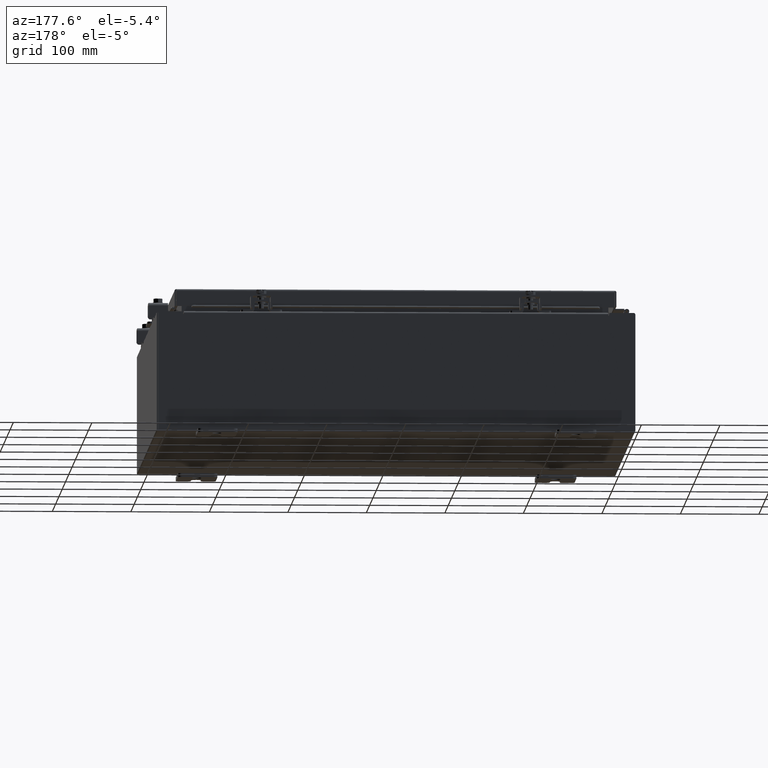
[diagram: clean part render]
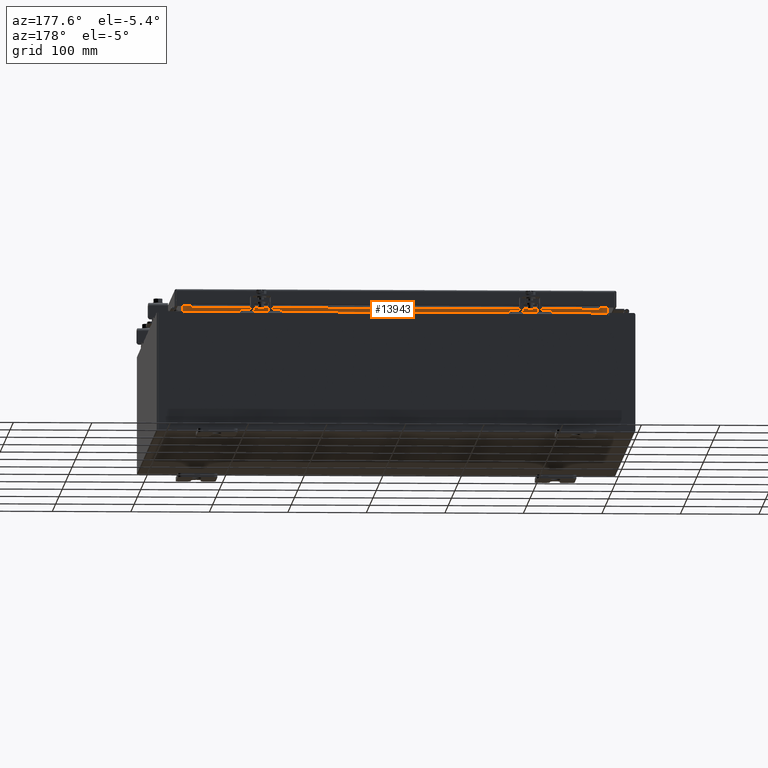
[diagram: same view with one face highlighted and labeled with its STEP entity id]
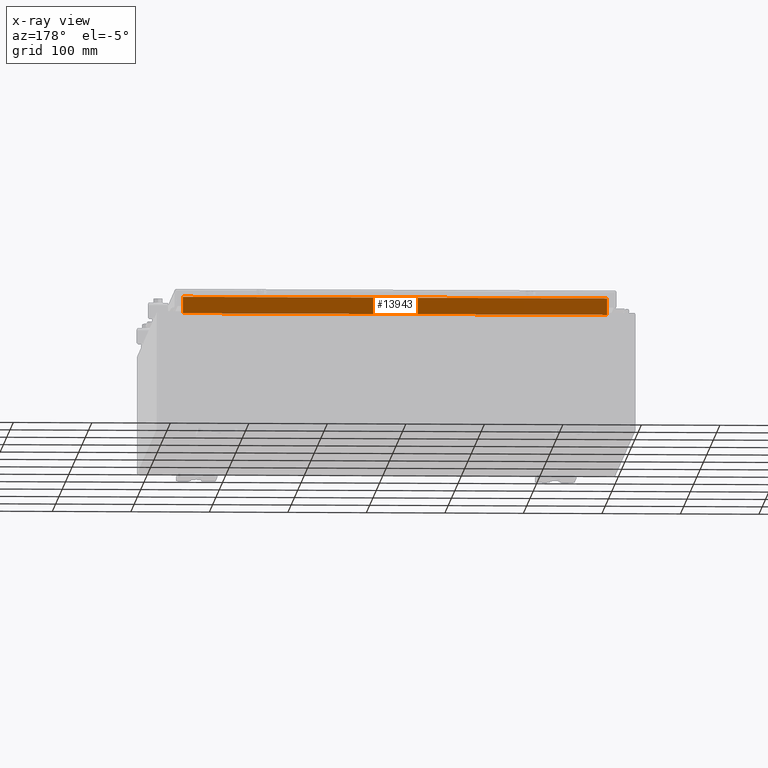
[diagram: x-ray of the same camera — body ghosted, the highlighted face saturated]
A machine part, auxiliary view. The second image highlights one B-rep face of the part: STEP entity #13943.
The next image is the same camera in x-ray: the body ghosted, the highlighted face saturated — about 0% of this face is hidden behind the body in this view.
In plain terms, the highlighted planar face has unit normal (0, 1, 0).
Its self-contained STEP definition (entity closure, byte-faithful):
#23 = VECTOR ( 'NONE', #28059, 39.37007874015748100 ) ;
#178 = CARTESIAN_POINT ( 'NONE',  ( 10.63720000000000200, -1.300299999999999800, 3.925300000000005300 ) ) ;
#362 = LINE ( 'NONE', #27732, #26202 ) ;
#2016 = CARTESIAN_POINT ( 'NONE',  ( 0.0000000000000000000, -1.300299999999999800, 0.0000000000000000000 ) ) ;
#3443 = CARTESIAN_POINT ( 'NONE',  ( 10.63720000000000400, -1.300299999999999800, 3.013000000000004800 ) ) ;
#5119 = DIRECTION ( 'NONE',  ( -0.0000000000000000000, -0.0000000000000000000, 1.000000000000000000 ) ) ;
#6278 = CARTESIAN_POINT ( 'NONE',  ( 10.63720000000000200, -1.300299999999999800, 3.837600000000005000 ) ) ;
#6831 = VECTOR ( 'NONE', #5119, 39.37007874015748100 ) ;
#9579 = DIRECTION ( 'NONE',  ( 0.0000000000000000000, 1.000000000000000000, 0.0000000000000000000 ) ) ;
#9731 = VERTEX_POINT ( 'NONE', #6278 ) ;
#11217 = EDGE_LOOP ( 'NONE', ( #12828, #11987, #22573, #30369 ) ) ;
#11633 = VERTEX_POINT ( 'NONE', #29241 ) ;
#11987 = ORIENTED_EDGE ( 'NONE', *, *, #15029, .F. ) ;
#12828 = ORIENTED_EDGE ( 'NONE', *, *, #13173, .F. ) ;
#13173 = EDGE_CURVE ( 'NONE', #14920, #11633, #30669, .T. ) ;
#13943 = ADVANCED_FACE ( 'NONE', ( #16937 ), #24558, .T. ) ;
#14920 = VERTEX_POINT ( 'NONE', #30169 ) ;
#15029 = EDGE_CURVE ( 'NONE', #9731, #14920, #20006, .T. ) ;
#16937 = FACE_OUTER_BOUND ( 'NONE', #11217, .T. ) ;
#17775 = DIRECTION ( 'NONE',  ( 1.000000000000000000, 0.0000000000000000000, -5.136404305013091600E-017 ) ) ;
#18662 = AXIS2_PLACEMENT_3D ( 'NONE', #2016, #9579, #27062 ) ;
#19262 = EDGE_CURVE ( 'NONE', #31049, #9731, #20927, .T. ) ;
#20006 = LINE ( 'NONE', #22888, #23 ) ;
#20927 = LINE ( 'NONE', #178, #6831 ) ;
#21536 = CARTESIAN_POINT ( 'NONE',  ( -10.63720000000000200, -1.300299999999999800, 3.000000000000005300 ) ) ;
#22573 = ORIENTED_EDGE ( 'NONE', *, *, #19262, .F. ) ;
#22888 = CARTESIAN_POINT ( 'NONE',  ( 10.63720000000000200, -1.300300000000000200, 3.837600000000005000 ) ) ;
#23993 = VECTOR ( 'NONE', #29094, 39.37007874015748100 ) ;
#24558 = PLANE ( 'NONE',  #18662 ) ;
#26202 = VECTOR ( 'NONE', #17775, 39.37007874015748100 ) ;
#27062 = DIRECTION ( 'NONE',  ( 0.0000000000000000000, -0.0000000000000000000, 1.000000000000000000 ) ) ;
#27732 = CARTESIAN_POINT ( 'NONE',  ( -10.63720000000000200, -1.300299999999999800, 3.013000000000005200 ) ) ;
#28059 = DIRECTION ( 'NONE',  ( -1.000000000000000000, -0.0000000000000000000, -0.0000000000000000000 ) ) ;
#29081 = EDGE_CURVE ( 'NONE', #11633, #31049, #362, .T. ) ;
#29094 = DIRECTION ( 'NONE',  ( -0.0000000000000000000, -0.0000000000000000000, -1.000000000000000000 ) ) ;
#29241 = CARTESIAN_POINT ( 'NONE',  ( -10.63720000000000400, -1.300299999999999800, 3.013000000000004800 ) ) ;
#30169 = CARTESIAN_POINT ( 'NONE',  ( -10.63720000000000200, -1.300300000000000200, 3.837600000000005000 ) ) ;
#30369 = ORIENTED_EDGE ( 'NONE', *, *, #29081, .F. ) ;
#30669 = LINE ( 'NONE', #21536, #23993 ) ;
#31049 = VERTEX_POINT ( 'NONE', #3443 ) ;